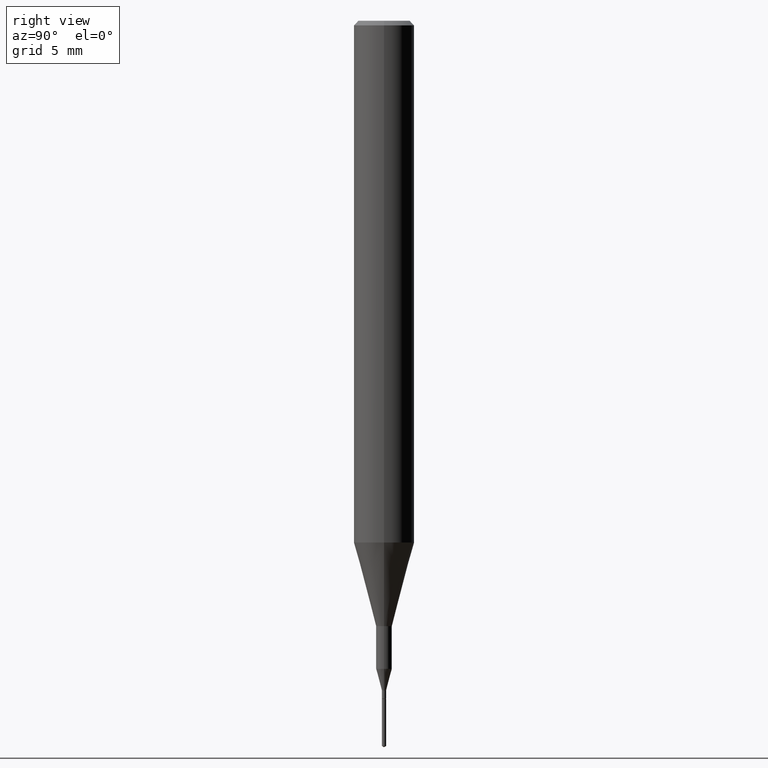
[diagram: clean part render]
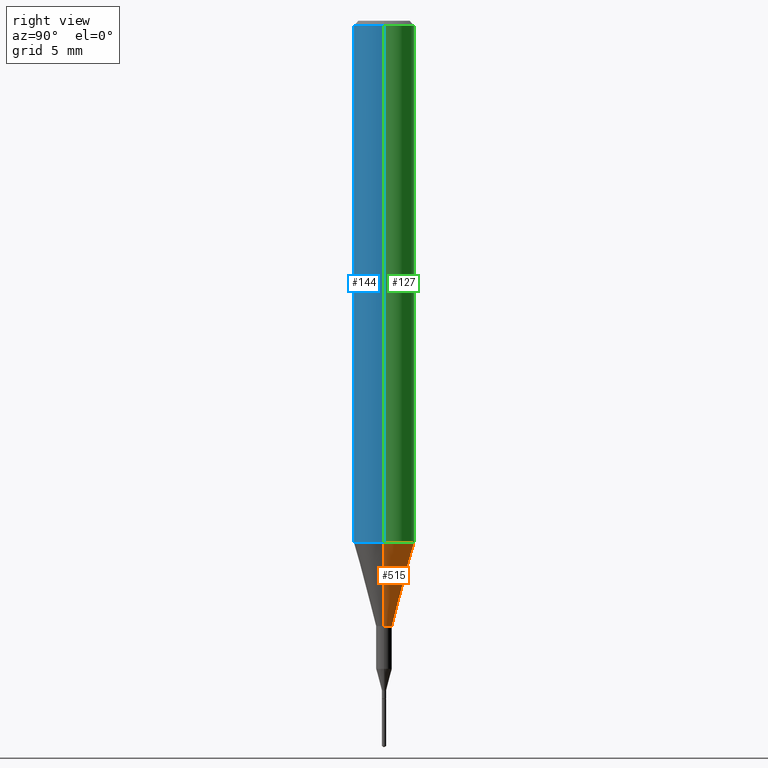
[diagram: same view with three faces highlighted in distinct colors, each labeled with its STEP entity id]
A machine part, right view with three faces highlighted in distinct colors.
Their STEP definitions:

[orange] entity #515 — the highlighted conical surface has half-angle 15 deg.
#14 = VERTEX_POINT ( 'NONE', #343 ) ;
#16 = ORIENTED_EDGE ( 'NONE', *, *, #46, .T. ) ;
#36 = DIRECTION ( 'NONE',  ( 1.000000000000000000, -6.982962677686264344E-15, 0.000000000000000000 ) ) ;
#46 = EDGE_CURVE ( 'NONE', #291, #14, #300, .T. ) ;
#60 = DIRECTION ( 'NONE',  ( 1.000000000000000000, -6.982962677686264344E-15, 0.000000000000000000 ) ) ;
#103 = DIRECTION ( 'NONE',  ( -2.445468806185136597E-29, 3.491481338843145583E-15, 1.000000000000000000 ) ) ;
#105 = VECTOR ( 'NONE', #351, 39.37007874015747433 ) ;
#110 = DIRECTION ( 'NONE',  ( -2.445468806185136597E-29, 3.491481338843145583E-15, 1.000000000000000000 ) ) ;
#112 = DIRECTION ( 'NONE',  ( 1.000000000000000000, -6.982962677686288799E-15, 0.000000000000000000 ) ) ;
#137 = LINE ( 'NONE', #454, #222 ) ;
#151 = AXIS2_PLACEMENT_3D ( 'NONE', #228, #110, #60 ) ;
#155 = CARTESIAN_POINT ( 'NONE',  ( -0.06250000000000012490, -3.317607122755211895E-15, -1.077392650149939346 ) ) ;
#163 = VERTEX_POINT ( 'NONE', #385 ) ;
#176 = EDGE_CURVE ( 'NONE', #163, #447, #545, .T. ) ;
#193 = CARTESIAN_POINT ( 'NONE',  ( 0.06250000000000012490, -4.198131499960668153E-15, -1.077392650149939346 ) ) ;
#198 = ORIENTED_EDGE ( 'NONE', *, *, #460, .F. ) ;
#222 = VECTOR ( 'NONE', #318, 39.37007874015747433 ) ;
#228 = CARTESIAN_POINT ( 'NONE',  ( 2.634730117954813298E-29, -3.761696332605275695E-15, -1.077392650149939346 ) ) ;
#279 = AXIS2_PLACEMENT_3D ( 'NONE', #280, #103, #112 ) ;
#280 = CARTESIAN_POINT ( 'NONE',  ( 3.056836007731421306E-29, -4.364351673553932471E-15, -1.250000000000000000 ) ) ;
#291 = VERTEX_POINT ( 'NONE', #511 ) ;
#300 = CIRCLE ( 'NONE', #279, 0.01624999999999999709 ) ;
#302 = CONICAL_SURFACE ( 'NONE', #355, 0.06250000000000012490, 0.2617993877991501295 ) ;
#306 = CARTESIAN_POINT ( 'NONE',  ( 2.634730117954813298E-29, -3.761696332605275695E-15, -1.077392650149939346 ) ) ;
#318 = DIRECTION ( 'NONE',  ( -0.2588190451025214611, 5.211531920934551042E-15, 0.9659258262890682012 ) ) ;
#343 = CARTESIAN_POINT ( 'NONE',  ( -0.01624999999999999709, -4.402842896544281840E-15, -1.250000000000000000 ) ) ;
#346 = DIRECTION ( 'NONE',  ( -2.445468806185136597E-29, 3.491481338843145583E-15, 1.000000000000000000 ) ) ;
#351 = DIRECTION ( 'NONE',  ( 0.2588190451025214611, 1.565188264969621573E-15, 0.9659258262890682012 ) ) ;
#355 = AXIS2_PLACEMENT_3D ( 'NONE', #306, #346, #36 ) ;
#385 = CARTESIAN_POINT ( 'NONE',  ( 0.06250000000000012490, -4.198131499960668153E-15, -1.077392650149939346 ) ) ;
#411 = EDGE_CURVE ( 'NONE', #14, #447, #137, .T. ) ;
#426 = LINE ( 'NONE', #193, #105 ) ;
#440 = ORIENTED_EDGE ( 'NONE', *, *, #411, .T. ) ;
#447 = VERTEX_POINT ( 'NONE', #155 ) ;
#454 = CARTESIAN_POINT ( 'NONE',  ( -0.06250000000000012490, -3.317607122755211895E-15, -1.077392650149939346 ) ) ;
#460 = EDGE_CURVE ( 'NONE', #291, #163, #426, .T. ) ;
#481 = EDGE_LOOP ( 'NONE', ( #16, #440, #572, #198 ) ) ;
#511 = CARTESIAN_POINT ( 'NONE',  ( 0.01624999999999999709, -4.477824817066334148E-15, -1.250000000000000000 ) ) ;
#515 = ADVANCED_FACE ( 'NONE', ( #580 ), #302, .T. ) ;
#545 = CIRCLE ( 'NONE', #151, 0.06250000000000012490 ) ;
#572 = ORIENTED_EDGE ( 'NONE', *, *, #176, .F. ) ;
#580 = FACE_OUTER_BOUND ( 'NONE', #481, .T. ) ;

[blue] entity #144 — the highlighted cylindrical surface (edge-blend (fillet) strip) has radius 1.5875 mm, axis along (-0, 0, 1).
#4 = LINE ( 'NONE', #382, #20 ) ;
#20 = VECTOR ( 'NONE', #99, 39.37007874015748143 ) ;
#34 = LINE ( 'NONE', #358, #562 ) ;
#48 = DIRECTION ( 'NONE',  ( -2.445468806185136597E-29, 3.491481338843145583E-15, 1.000000000000000000 ) ) ;
#51 = CARTESIAN_POINT ( 'NONE',  ( -0.06250000000000000000, -1.453125275228401137E-15, -0.009375000000000062103 ) ) ;
#70 = ORIENTED_EDGE ( 'NONE', *, *, #433, .F. ) ;
#80 = EDGE_CURVE ( 'NONE', #447, #378, #4, .T. ) ;
#97 = CARTESIAN_POINT ( 'NONE',  ( 0.000000000000000000, 0.000000000000000000, 0.000000000000000000 ) ) ;
#99 = DIRECTION ( 'NONE',  ( -2.445468806185136877E-29, 3.491481338843145188E-15, 1.000000000000000000 ) ) ;
#142 = CIRCLE ( 'NONE', #525, 0.06250000000000012490 ) ;
#144 = ADVANCED_FACE ( 'NONE', ( #506 ), #559, .T. ) ;
#148 = DIRECTION ( 'NONE',  ( 1.000000000000000000, -6.982962677686266711E-15, 4.876176775795935793E-29 ) ) ;
#155 = CARTESIAN_POINT ( 'NONE',  ( -0.06250000000000012490, -3.317607122755211895E-15, -1.077392650149939346 ) ) ;
#163 = VERTEX_POINT ( 'NONE', #385 ) ;
#168 = DIRECTION ( 'NONE',  ( -2.445468806185136877E-29, 3.491481338843145188E-15, 1.000000000000000000 ) ) ;
#174 = ORIENTED_EDGE ( 'NONE', *, *, #80, .F. ) ;
#196 = ORIENTED_EDGE ( 'NONE', *, *, #469, .T. ) ;
#197 = EDGE_CURVE ( 'NONE', #447, #163, #142, .T. ) ;
#232 = AXIS2_PLACEMENT_3D ( 'NONE', #97, #277, #148 ) ;
#250 = ORIENTED_EDGE ( 'NONE', *, *, #197, .T. ) ;
#272 = CARTESIAN_POINT ( 'NONE',  ( 2.292627005798580623E-31, -3.273263755165470801E-17, -0.009375000000000062103 ) ) ;
#275 = CARTESIAN_POINT ( 'NONE',  ( 2.634730117954813298E-29, -3.761696332605275695E-15, -1.077392650149939346 ) ) ;
#277 = DIRECTION ( 'NONE',  ( -2.445468806185136597E-29, 3.491481338843145583E-15, 1.000000000000000000 ) ) ;
#284 = CARTESIAN_POINT ( 'NONE',  ( 0.06250000000000000000, -4.691678049070463404E-16, -0.009375000000000062103 ) ) ;
#294 = VERTEX_POINT ( 'NONE', #284 ) ;
#326 = DIRECTION ( 'NONE',  ( 1.000000000000000000, -6.982962677686264344E-15, 0.000000000000000000 ) ) ;
#339 = AXIS2_PLACEMENT_3D ( 'NONE', #272, #48, #381 ) ;
#358 = CARTESIAN_POINT ( 'NONE',  ( 0.06250000000000006939, -4.364351673553921624E-16, 3.047610484872463374E-30 ) ) ;
#378 = VERTEX_POINT ( 'NONE', #51 ) ;
#381 = DIRECTION ( 'NONE',  ( 1.000000000000000000, -6.982962677686266711E-15, 0.000000000000000000 ) ) ;
#382 = CARTESIAN_POINT ( 'NONE',  ( -0.06250000000000006939, 4.440892098500631092E-16, -3.074334431409319267E-30 ) ) ;
#385 = CARTESIAN_POINT ( 'NONE',  ( 0.06250000000000012490, -4.198131499960668153E-15, -1.077392650149939346 ) ) ;
#420 = CIRCLE ( 'NONE', #339, 0.06250000000000000000 ) ;
#433 = EDGE_CURVE ( 'NONE', #378, #294, #420, .T. ) ;
#447 = VERTEX_POINT ( 'NONE', #155 ) ;
#459 = DIRECTION ( 'NONE',  ( -2.445468806185136597E-29, 3.491481338843145583E-15, 1.000000000000000000 ) ) ;
#469 = EDGE_CURVE ( 'NONE', #163, #294, #34, .T. ) ;
#506 = FACE_OUTER_BOUND ( 'NONE', #558, .T. ) ;
#525 = AXIS2_PLACEMENT_3D ( 'NONE', #275, #459, #326 ) ;
#558 = EDGE_LOOP ( 'NONE', ( #174, #250, #196, #70 ) ) ;
#559 = CYLINDRICAL_SURFACE ( 'NONE', #232, 0.06250000000000006939 ) ;
#562 = VECTOR ( 'NONE', #168, 39.37007874015748143 ) ;

[green] entity #127 — the highlighted cylindrical surface (edge-blend (fillet) strip) has radius 1.5875 mm, axis along (-0, 0, 1).
#4 = LINE ( 'NONE', #382, #20 ) ;
#20 = VECTOR ( 'NONE', #99, 39.37007874015748143 ) ;
#34 = LINE ( 'NONE', #358, #562 ) ;
#47 = DIRECTION ( 'NONE',  ( 1.000000000000000000, -6.982962677686266711E-15, 0.000000000000000000 ) ) ;
#51 = CARTESIAN_POINT ( 'NONE',  ( -0.06250000000000000000, -1.453125275228401137E-15, -0.009375000000000062103 ) ) ;
#60 = DIRECTION ( 'NONE',  ( 1.000000000000000000, -6.982962677686264344E-15, 0.000000000000000000 ) ) ;
#80 = EDGE_CURVE ( 'NONE', #447, #378, #4, .T. ) ;
#85 = ORIENTED_EDGE ( 'NONE', *, *, #80, .T. ) ;
#96 = ORIENTED_EDGE ( 'NONE', *, *, #176, .T. ) ;
#99 = DIRECTION ( 'NONE',  ( -2.445468806185136877E-29, 3.491481338843145188E-15, 1.000000000000000000 ) ) ;
#110 = DIRECTION ( 'NONE',  ( -2.445468806185136597E-29, 3.491481338843145583E-15, 1.000000000000000000 ) ) ;
#127 = ADVANCED_FACE ( 'NONE', ( #441 ), #388, .T. ) ;
#151 = AXIS2_PLACEMENT_3D ( 'NONE', #228, #110, #60 ) ;
#155 = CARTESIAN_POINT ( 'NONE',  ( -0.06250000000000012490, -3.317607122755211895E-15, -1.077392650149939346 ) ) ;
#163 = VERTEX_POINT ( 'NONE', #385 ) ;
#168 = DIRECTION ( 'NONE',  ( -2.445468806185136877E-29, 3.491481338843145188E-15, 1.000000000000000000 ) ) ;
#169 = EDGE_CURVE ( 'NONE', #294, #378, #242, .T. ) ;
#176 = EDGE_CURVE ( 'NONE', #163, #447, #545, .T. ) ;
#228 = CARTESIAN_POINT ( 'NONE',  ( 2.634730117954813298E-29, -3.761696332605275695E-15, -1.077392650149939346 ) ) ;
#242 = CIRCLE ( 'NONE', #407, 0.06250000000000000000 ) ;
#244 = ORIENTED_EDGE ( 'NONE', *, *, #169, .F. ) ;
#247 = DIRECTION ( 'NONE',  ( 1.000000000000000000, -6.982962677686266711E-15, 4.876176775795935793E-29 ) ) ;
#248 = ORIENTED_EDGE ( 'NONE', *, *, #469, .F. ) ;
#261 = EDGE_LOOP ( 'NONE', ( #96, #85, #244, #248 ) ) ;
#284 = CARTESIAN_POINT ( 'NONE',  ( 0.06250000000000000000, -4.691678049070463404E-16, -0.009375000000000062103 ) ) ;
#294 = VERTEX_POINT ( 'NONE', #284 ) ;
#296 = CARTESIAN_POINT ( 'NONE',  ( 0.000000000000000000, 0.000000000000000000, 0.000000000000000000 ) ) ;
#332 = CARTESIAN_POINT ( 'NONE',  ( 2.292627005798580623E-31, -3.273263755165470801E-17, -0.009375000000000062103 ) ) ;
#358 = CARTESIAN_POINT ( 'NONE',  ( 0.06250000000000006939, -4.364351673553921624E-16, 3.047610484872463374E-30 ) ) ;
#378 = VERTEX_POINT ( 'NONE', #51 ) ;
#382 = CARTESIAN_POINT ( 'NONE',  ( -0.06250000000000006939, 4.440892098500631092E-16, -3.074334431409319267E-30 ) ) ;
#385 = CARTESIAN_POINT ( 'NONE',  ( 0.06250000000000012490, -4.198131499960668153E-15, -1.077392650149939346 ) ) ;
#388 = CYLINDRICAL_SURFACE ( 'NONE', #477, 0.06250000000000006939 ) ;
#407 = AXIS2_PLACEMENT_3D ( 'NONE', #332, #513, #47 ) ;
#441 = FACE_OUTER_BOUND ( 'NONE', #261, .T. ) ;
#447 = VERTEX_POINT ( 'NONE', #155 ) ;
#469 = EDGE_CURVE ( 'NONE', #163, #294, #34, .T. ) ;
#477 = AXIS2_PLACEMENT_3D ( 'NONE', #296, #480, #247 ) ;
#480 = DIRECTION ( 'NONE',  ( -2.445468806185136597E-29, 3.491481338843145583E-15, 1.000000000000000000 ) ) ;
#513 = DIRECTION ( 'NONE',  ( -2.445468806185136597E-29, 3.491481338843145583E-15, 1.000000000000000000 ) ) ;
#545 = CIRCLE ( 'NONE', #151, 0.06250000000000012490 ) ;
#562 = VECTOR ( 'NONE', #168, 39.37007874015748143 ) ;